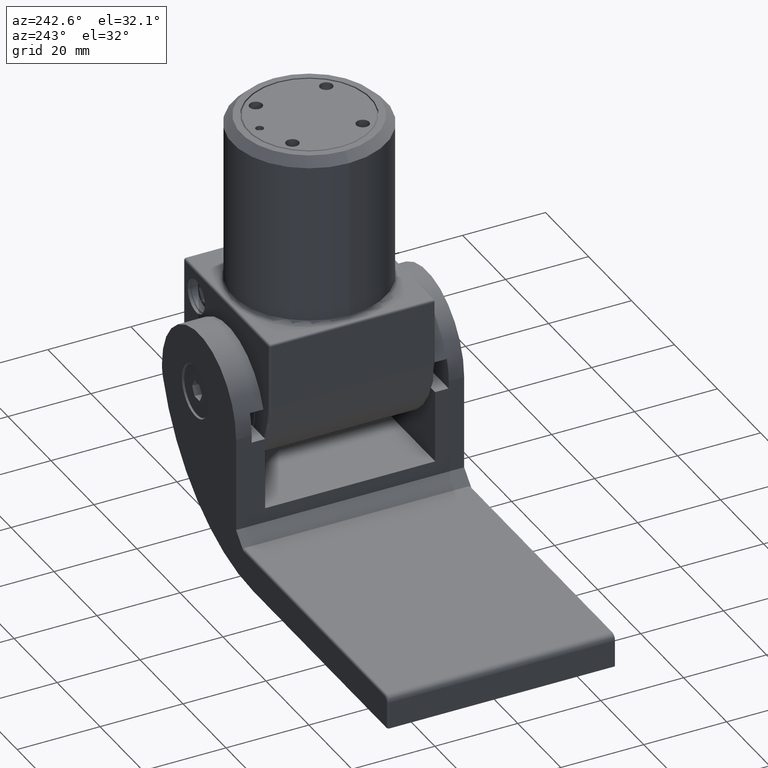
[diagram: clean part render]
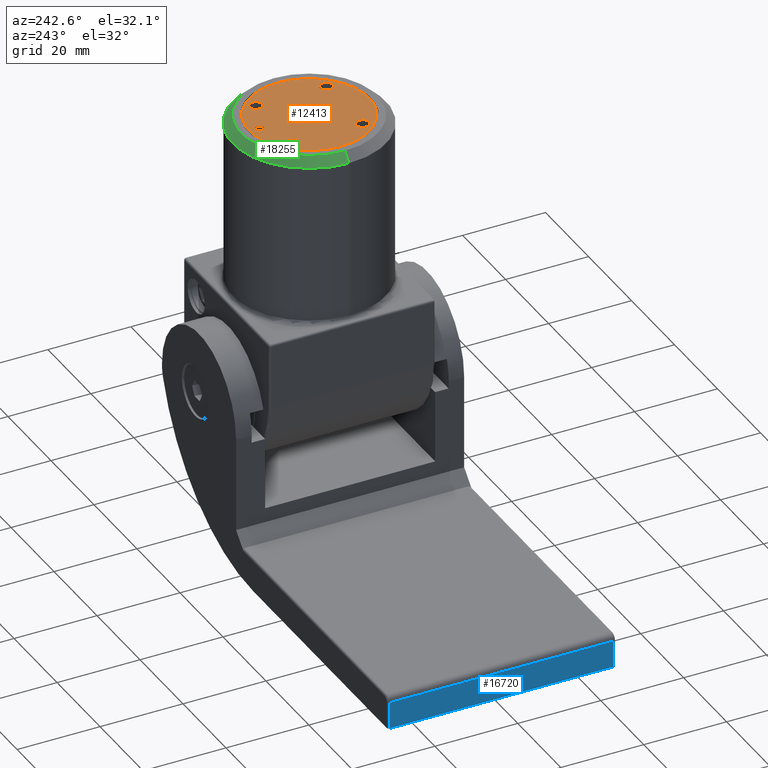
[diagram: same view with three faces highlighted in distinct colors, each labeled with its STEP entity id]
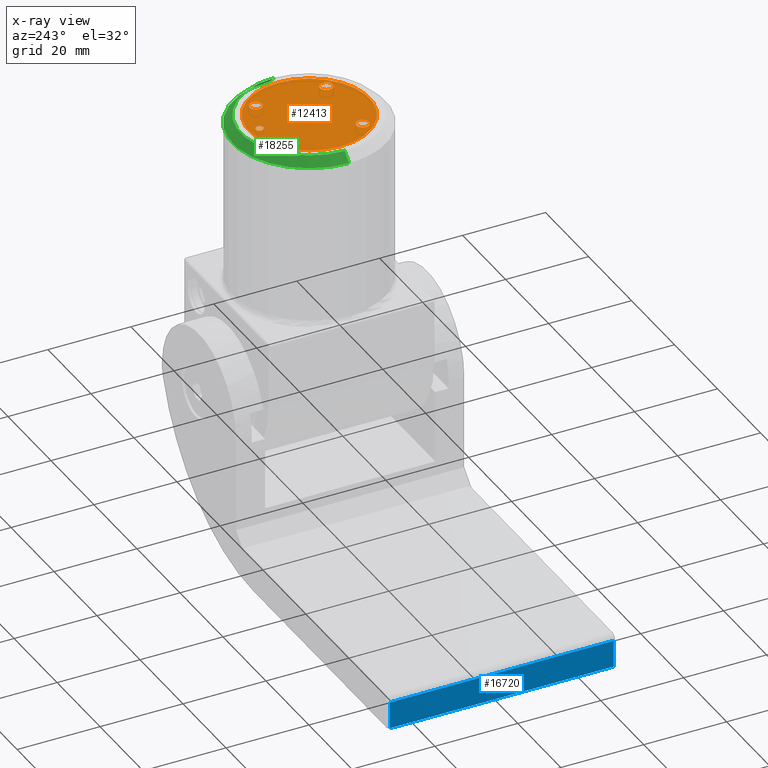
[diagram: x-ray of the same camera — body ghosted, the three highlighted faces saturated]
A machine part, auxiliary view with three faces highlighted in distinct colors.
The next image is the same camera in x-ray (body ghosted, the three faces saturated) — at least one of them is partly hidden behind the body in this view.
Their STEP definitions:

[orange] entity #12413 — the highlighted planar face has unit normal (0, 0, 1).
#201 = DIRECTION ( 'NONE',  ( 0.000000000000000000, 0.000000000000000000, 1.000000000000000000 ) ) ;
#288 = FACE_BOUND ( 'NONE', #7735, .T. ) ;
#440 = DIRECTION ( 'NONE',  ( 1.000000000000000000, 0.000000000000000000, 0.000000000000000000 ) ) ;
#494 = CARTESIAN_POINT ( 'NONE',  ( -8.485281374238585528, 8.485281374238553553, 41.50000000000000000 ) ) ;
#815 = EDGE_CURVE ( 'NONE', #1364, #20619, #9028, .T. ) ;
#955 = CARTESIAN_POINT ( 'NONE',  ( 8.485281374238583751, 8.485281374238555330, 41.50000000000000000 ) ) ;
#1011 = VERTEX_POINT ( 'NONE', #15068 ) ;
#1364 = VERTEX_POINT ( 'NONE', #10288 ) ;
#1389 = ORIENTED_EDGE ( 'NONE', *, *, #1604, .F. ) ;
#1438 = ORIENTED_EDGE ( 'NONE', *, *, #12373, .F. ) ;
#1504 = AXIS2_PLACEMENT_3D ( 'NONE', #9795, #201, #12822 ) ;
#1600 = DIRECTION ( 'NONE',  ( -1.000000000000000000, 0.000000000000000000, 0.000000000000000000 ) ) ;
#1604 = EDGE_CURVE ( 'NONE', #14098, #3227, #19007, .T. ) ;
#1706 = VERTEX_POINT ( 'NONE', #19671 ) ;
#2207 = ORIENTED_EDGE ( 'NONE', *, *, #5300, .F. ) ;
#2539 = CARTESIAN_POINT ( 'NONE',  ( -0.9499999999999890754, 12.00000000000000000, 41.50000000000000000 ) ) ;
#2703 = DIRECTION ( 'NONE',  ( 0.000000000000000000, 0.000000000000000000, 1.000000000000000000 ) ) ;
#2789 = CARTESIAN_POINT ( 'NONE',  ( -8.485281374238642371, -8.485281374238496710, 41.50000000000000000 ) ) ;
#2958 = DIRECTION ( 'NONE',  ( 0.000000000000000000, 0.000000000000000000, 1.000000000000000000 ) ) ;
#3024 = DIRECTION ( 'NONE',  ( 1.000000000000000000, 0.000000000000000000, 0.000000000000000000 ) ) ;
#3227 = VERTEX_POINT ( 'NONE', #2539 ) ;
#3291 = DIRECTION ( 'NONE',  ( 0.000000000000000000, 0.000000000000000000, 1.000000000000000000 ) ) ;
#3309 = EDGE_CURVE ( 'NONE', #13976, #19962, #6997, .T. ) ;
#3316 = EDGE_LOOP ( 'NONE', ( #5757, #3759 ) ) ;
#3759 = ORIENTED_EDGE ( 'NONE', *, *, #6625, .F. ) ;
#4109 = AXIS2_PLACEMENT_3D ( 'NONE', #17029, #20381, #10812 ) ;
#4189 = ORIENTED_EDGE ( 'NONE', *, *, #815, .F. ) ;
#4471 = DIRECTION ( 'NONE',  ( 1.007258792502661639E-14, 1.000000000000000000, 0.000000000000000000 ) ) ;
#4622 = CIRCLE ( 'NONE', #18789, 1.550000000000000933 ) ;
#4970 = CARTESIAN_POINT ( 'NONE',  ( 8.485281374238585528, -8.485281374238553553, 41.50000000000000000 ) ) ;
#4976 = DIRECTION ( 'NONE',  ( 1.000000000000000000, 0.000000000000000000, 0.000000000000000000 ) ) ;
#5183 = EDGE_CURVE ( 'NONE', #1706, #9881, #17926, .T. ) ;
#5300 = EDGE_CURVE ( 'NONE', #3227, #14098, #11949, .T. ) ;
#5524 = EDGE_CURVE ( 'NONE', #9881, #1706, #4622, .T. ) ;
#5757 = ORIENTED_EDGE ( 'NONE', *, *, #9424, .F. ) ;
#5808 = ORIENTED_EDGE ( 'NONE', *, *, #14499, .T. ) ;
#5907 = ORIENTED_EDGE ( 'NONE', *, *, #3309, .T. ) ;
#6069 = CIRCLE ( 'NONE', #12069, 1.550000000000000933 ) ;
#6410 = DIRECTION ( 'NONE',  ( 1.000000000000000000, 0.000000000000000000, 0.000000000000000000 ) ) ;
#6539 = ORIENTED_EDGE ( 'NONE', *, *, #17216, .F. ) ;
#6625 = EDGE_CURVE ( 'NONE', #16498, #10129, #12901, .T. ) ;
#6904 = CARTESIAN_POINT ( 'NONE',  ( -10.03528137423858624, 8.485281374238553553, 41.50000000000000000 ) ) ;
#6997 = CIRCLE ( 'NONE', #9971, 14.49999999999999822 ) ;
#7604 = AXIS2_PLACEMENT_3D ( 'NONE', #9738, #20799, #1600 ) ;
#7735 = EDGE_LOOP ( 'NONE', ( #1389, #2207 ) ) ;
#7908 = DIRECTION ( 'NONE',  ( 0.000000000000000000, 0.000000000000000000, 1.000000000000000000 ) ) ;
#7914 = CARTESIAN_POINT ( 'NONE',  ( 0.000000000000000000, 12.00000000000000000, 41.50000000000000000 ) ) ;
#8375 = CARTESIAN_POINT ( 'NONE',  ( 0.9499999999999890754, 12.00000000000000000, 41.50000000000000000 ) ) ;
#9023 = DIRECTION ( 'NONE',  ( 1.007258792502661639E-14, 1.000000000000000000, 0.000000000000000000 ) ) ;
#9028 = CIRCLE ( 'NONE', #11979, 1.550000000000000933 ) ;
#9177 = DIRECTION ( 'NONE',  ( 0.000000000000000000, 0.000000000000000000, 1.000000000000000000 ) ) ;
#9305 = CARTESIAN_POINT ( 'NONE',  ( -8.485281374238642371, -8.485281374238496710, 41.50000000000000000 ) ) ;
#9424 = EDGE_CURVE ( 'NONE', #10129, #16498, #9799, .T. ) ;
#9439 = DIRECTION ( 'NONE',  ( -1.000000000000000000, 0.000000000000000000, 0.000000000000000000 ) ) ;
#9708 = CARTESIAN_POINT ( 'NONE',  ( -8.485281374238585528, 8.485281374238553553, 41.50000000000000000 ) ) ;
#9738 = CARTESIAN_POINT ( 'NONE',  ( 8.485281374238585528, -8.485281374238553553, 41.50000000000000000 ) ) ;
#9795 = CARTESIAN_POINT ( 'NONE',  ( 8.485281374238583751, 8.485281374238555330, 41.50000000000000000 ) ) ;
#9799 = CIRCLE ( 'NONE', #7604, 1.550000000000000933 ) ;
#9812 = FACE_OUTER_BOUND ( 'NONE', #15809, .T. ) ;
#9881 = VERTEX_POINT ( 'NONE', #18027 ) ;
#9968 = AXIS2_PLACEMENT_3D ( 'NONE', #494, #18121, #11790 ) ;
#9971 = AXIS2_PLACEMENT_3D ( 'NONE', #19187, #3291, #6410 ) ;
#10129 = VERTEX_POINT ( 'NONE', #19347 ) ;
#10288 = CARTESIAN_POINT ( 'NONE',  ( -6.935281374238583929, 8.485281374238553553, 41.50000000000000000 ) ) ;
#10577 = FACE_BOUND ( 'NONE', #19284, .T. ) ;
#10812 = DIRECTION ( 'NONE',  ( 1.000000000000000000, 0.000000000000000000, -0.000000000000000000 ) ) ;
#10852 = EDGE_LOOP ( 'NONE', ( #4189, #6539 ) ) ;
#11172 = CIRCLE ( 'NONE', #9968, 1.550000000000000933 ) ;
#11619 = AXIS2_PLACEMENT_3D ( 'NONE', #7914, #17694, #4976 ) ;
#11790 = DIRECTION ( 'NONE',  ( 1.000000000000000000, 0.000000000000000000, 0.000000000000000000 ) ) ;
#11909 = CARTESIAN_POINT ( 'NONE',  ( -14.49999999999999822, 0.000000000000000000, 41.50000000000000000 ) ) ;
#11949 = CIRCLE ( 'NONE', #11619, 0.9499999999999890754 ) ;
#11979 = AXIS2_PLACEMENT_3D ( 'NONE', #9708, #2958, #3024 ) ;
#12069 = AXIS2_PLACEMENT_3D ( 'NONE', #2789, #9177, #4471 ) ;
#12373 = EDGE_CURVE ( 'NONE', #17489, #1011, #6069, .T. ) ;
#12413 = ADVANCED_FACE ( 'NONE', ( #9812, #288, #10577, #18548, #13366, #14354 ), #14053, .T. ) ;
#12822 = DIRECTION ( 'NONE',  ( -3.357529308342205333E-15, -1.000000000000000000, 0.000000000000000000 ) ) ;
#12901 = CIRCLE ( 'NONE', #12959, 1.550000000000000933 ) ;
#12959 = AXIS2_PLACEMENT_3D ( 'NONE', #4970, #7908, #9439 ) ;
#13366 = FACE_BOUND ( 'NONE', #20218, .T. ) ;
#13857 = AXIS2_PLACEMENT_3D ( 'NONE', #17351, #14112, #17481 ) ;
#13976 = VERTEX_POINT ( 'NONE', #14777 ) ;
#14020 = DIRECTION ( 'NONE',  ( 0.000000000000000000, 0.000000000000000000, 1.000000000000000000 ) ) ;
#14053 = PLANE ( 'NONE',  #4109 ) ;
#14098 = VERTEX_POINT ( 'NONE', #8375 ) ;
#14112 = DIRECTION ( 'NONE',  ( -0.000000000000000000, -0.000000000000000000, 1.000000000000000000 ) ) ;
#14354 = FACE_BOUND ( 'NONE', #10852, .T. ) ;
#14499 = EDGE_CURVE ( 'NONE', #19962, #13976, #18015, .T. ) ;
#14584 = EDGE_CURVE ( 'NONE', #1011, #17489, #16552, .T. ) ;
#14777 = CARTESIAN_POINT ( 'NONE',  ( 14.49999999999999822, 1.791045943753003908E-15, 41.50000000000000000 ) ) ;
#15068 = CARTESIAN_POINT ( 'NONE',  ( -6.935281374238641661, -8.485281374238496710, 41.50000000000000000 ) ) ;
#15124 = ORIENTED_EDGE ( 'NONE', *, *, #5524, .F. ) ;
#15409 = DIRECTION ( 'NONE',  ( -3.357529308342205333E-15, -1.000000000000000000, 0.000000000000000000 ) ) ;
#15809 = EDGE_LOOP ( 'NONE', ( #5808, #5907 ) ) ;
#16467 = CARTESIAN_POINT ( 'NONE',  ( -10.03528137423864308, -8.485281374238496710, 41.50000000000000000 ) ) ;
#16498 = VERTEX_POINT ( 'NONE', #19405 ) ;
#16552 = CIRCLE ( 'NONE', #19982, 1.550000000000000933 ) ;
#16761 = ORIENTED_EDGE ( 'NONE', *, *, #5183, .F. ) ;
#17029 = CARTESIAN_POINT ( 'NONE',  ( 0.000000000000000000, 0.000000000000000000, 41.50000000000000000 ) ) ;
#17216 = EDGE_CURVE ( 'NONE', #20619, #1364, #11172, .T. ) ;
#17351 = CARTESIAN_POINT ( 'NONE',  ( 0.000000000000000000, 12.00000000000000000, 41.50000000000000000 ) ) ;
#17481 = DIRECTION ( 'NONE',  ( 1.000000000000000000, 0.000000000000000000, 0.000000000000000000 ) ) ;
#17489 = VERTEX_POINT ( 'NONE', #16467 ) ;
#17694 = DIRECTION ( 'NONE',  ( -0.000000000000000000, -0.000000000000000000, 1.000000000000000000 ) ) ;
#17923 = DIRECTION ( 'NONE',  ( 0.000000000000000000, 0.000000000000000000, 1.000000000000000000 ) ) ;
#17926 = CIRCLE ( 'NONE', #1504, 1.550000000000000933 ) ;
#18015 = CIRCLE ( 'NONE', #18873, 14.49999999999999822 ) ;
#18027 = CARTESIAN_POINT ( 'NONE',  ( 6.935281374238582153, 8.485281374238555330, 41.50000000000000000 ) ) ;
#18121 = DIRECTION ( 'NONE',  ( 0.000000000000000000, 0.000000000000000000, 1.000000000000000000 ) ) ;
#18435 = ORIENTED_EDGE ( 'NONE', *, *, #14584, .F. ) ;
#18548 = FACE_BOUND ( 'NONE', #3316, .T. ) ;
#18789 = AXIS2_PLACEMENT_3D ( 'NONE', #955, #14020, #15409 ) ;
#18873 = AXIS2_PLACEMENT_3D ( 'NONE', #19619, #17923, #440 ) ;
#19007 = CIRCLE ( 'NONE', #13857, 0.9499999999999890754 ) ;
#19187 = CARTESIAN_POINT ( 'NONE',  ( 0.000000000000000000, 0.000000000000000000, 41.50000000000000000 ) ) ;
#19284 = EDGE_LOOP ( 'NONE', ( #16761, #15124 ) ) ;
#19347 = CARTESIAN_POINT ( 'NONE',  ( 10.03528137423858624, -8.485281374238553553, 41.50000000000000000 ) ) ;
#19405 = CARTESIAN_POINT ( 'NONE',  ( 6.935281374238583929, -8.485281374238553553, 41.50000000000000000 ) ) ;
#19619 = CARTESIAN_POINT ( 'NONE',  ( 0.000000000000000000, 0.000000000000000000, 41.50000000000000000 ) ) ;
#19671 = CARTESIAN_POINT ( 'NONE',  ( 10.03528137423858446, 8.485281374238555330, 41.50000000000000000 ) ) ;
#19962 = VERTEX_POINT ( 'NONE', #11909 ) ;
#19982 = AXIS2_PLACEMENT_3D ( 'NONE', #9305, #2703, #9023 ) ;
#20218 = EDGE_LOOP ( 'NONE', ( #18435, #1438 ) ) ;
#20381 = DIRECTION ( 'NONE',  ( 0.000000000000000000, 0.000000000000000000, 1.000000000000000000 ) ) ;
#20619 = VERTEX_POINT ( 'NONE', #6904 ) ;
#20799 = DIRECTION ( 'NONE',  ( 0.000000000000000000, 0.000000000000000000, 1.000000000000000000 ) ) ;

[blue] entity #16720 — the highlighted planar face has unit normal (1, 0, 0).
#781 = VERTEX_POINT ( 'NONE', #19063 ) ;
#956 = VERTEX_POINT ( 'NONE', #3672 ) ;
#1055 = DIRECTION ( 'NONE',  ( -8.673617379884036458E-16, 0.000000000000000000, 1.000000000000000000 ) ) ;
#1906 = FACE_OUTER_BOUND ( 'NONE', #9821, .T. ) ;
#1985 = DIRECTION ( 'NONE',  ( -0.000000000000000000, -1.000000000000000000, -0.000000000000000000 ) ) ;
#2144 = AXIS2_PLACEMENT_3D ( 'NONE', #5559, #19968, #8964 ) ;
#2182 = CARTESIAN_POINT ( 'NONE',  ( -52.49999999999998579, 27.50000000000000000, -25.50000000000000000 ) ) ;
#3127 = VERTEX_POINT ( 'NONE', #10274 ) ;
#3513 = ORIENTED_EDGE ( 'NONE', *, *, #4929, .T. ) ;
#3557 = ORIENTED_EDGE ( 'NONE', *, *, #6817, .T. ) ;
#3672 = CARTESIAN_POINT ( 'NONE',  ( -52.49999999999999289, -27.00000000000000000, -19.00000000000000000 ) ) ;
#4007 = ORIENTED_EDGE ( 'NONE', *, *, #18901, .T. ) ;
#4570 = LINE ( 'NONE', #2182, #18345 ) ;
#4929 = EDGE_CURVE ( 'NONE', #956, #781, #14474, .T. ) ;
#5128 = LINE ( 'NONE', #8768, #17376 ) ;
#5559 = CARTESIAN_POINT ( 'NONE',  ( -52.49999999999998579, 27.50000000000000000, -25.50000000000000000 ) ) ;
#6817 = EDGE_CURVE ( 'NONE', #781, #12384, #14420, .T. ) ;
#8768 = CARTESIAN_POINT ( 'NONE',  ( -52.49999999999998579, -27.00000000000000000, -25.50000000000000000 ) ) ;
#8964 = DIRECTION ( 'NONE',  ( 8.673617379884036458E-16, 0.000000000000000000, -1.000000000000000000 ) ) ;
#9459 = DIRECTION ( 'NONE',  ( -0.000000000000000000, 1.000000000000000000, -0.000000000000000000 ) ) ;
#9821 = EDGE_LOOP ( 'NONE', ( #10093, #4007, #3513, #3557 ) ) ;
#10093 = ORIENTED_EDGE ( 'NONE', *, *, #10264, .T. ) ;
#10190 = VECTOR ( 'NONE', #9459, 1000.000000000000000 ) ;
#10264 = EDGE_CURVE ( 'NONE', #12384, #3127, #4570, .T. ) ;
#10274 = CARTESIAN_POINT ( 'NONE',  ( -52.49999999999998579, -27.00000000000000000, -25.50000000000000000 ) ) ;
#12384 = VERTEX_POINT ( 'NONE', #12427 ) ;
#12427 = CARTESIAN_POINT ( 'NONE',  ( -52.49999999999998579, 27.00000000000000000, -25.50000000000000000 ) ) ;
#12444 = DIRECTION ( 'NONE',  ( 8.673617379884036458E-16, -0.000000000000000000, -1.000000000000000000 ) ) ;
#14420 = LINE ( 'NONE', #20339, #17629 ) ;
#14474 = LINE ( 'NONE', #19164, #10190 ) ;
#16720 = ADVANCED_FACE ( 'NONE', ( #1906 ), #17026, .F. ) ;
#17026 = PLANE ( 'NONE',  #2144 ) ;
#17376 = VECTOR ( 'NONE', #1055, 1000.000000000000000 ) ;
#17629 = VECTOR ( 'NONE', #12444, 1000.000000000000000 ) ;
#18345 = VECTOR ( 'NONE', #1985, 1000.000000000000000 ) ;
#18901 = EDGE_CURVE ( 'NONE', #3127, #956, #5128, .T. ) ;
#19063 = CARTESIAN_POINT ( 'NONE',  ( -52.49999999999999289, 27.00000000000000000, -19.00000000000000000 ) ) ;
#19164 = CARTESIAN_POINT ( 'NONE',  ( -52.49999999999999289, 27.50000000000000000, -19.00000000000000000 ) ) ;
#19968 = DIRECTION ( 'NONE',  ( 1.000000000000000000, -0.000000000000000000, 8.673617379884036458E-16 ) ) ;
#20339 = CARTESIAN_POINT ( 'NONE',  ( -52.49999999999998579, 27.00000000000000000, -25.50000000000000000 ) ) ;

[green] entity #18255 — the highlighted conical surface has half-angle 45 deg.
#147 = DIRECTION ( 'NONE',  ( 1.000000000000000000, 0.000000000000000000, 0.000000000000000000 ) ) ;
#480 = EDGE_CURVE ( 'NONE', #15946, #19583, #989, .T. ) ;
#953 = EDGE_CURVE ( 'NONE', #2966, #13429, #6040, .T. ) ;
#989 = LINE ( 'NONE', #17505, #18502 ) ;
#2780 = EDGE_LOOP ( 'NONE', ( #14035, #5436, #17089, #15964 ) ) ;
#2966 = VERTEX_POINT ( 'NONE', #10006 ) ;
#2995 = DIRECTION ( 'NONE',  ( -0.7071067811865456854, 0.000000000000000000, -0.7071067811865493491 ) ) ;
#3190 = CARTESIAN_POINT ( 'NONE',  ( 0.000000000000000000, 0.000000000000000000, 39.49999999999996447 ) ) ;
#3335 = FACE_OUTER_BOUND ( 'NONE', #2780, .T. ) ;
#3592 = CARTESIAN_POINT ( 'NONE',  ( 0.000000000000000000, 0.000000000000000000, 41.50000000000000000 ) ) ;
#5436 = ORIENTED_EDGE ( 'NONE', *, *, #953, .T. ) ;
#6040 = LINE ( 'NONE', #14996, #11833 ) ;
#6340 = AXIS2_PLACEMENT_3D ( 'NONE', #3592, #14847, #8989 ) ;
#7219 = AXIS2_PLACEMENT_3D ( 'NONE', #3190, #17707, #147 ) ;
#7278 = EDGE_CURVE ( 'NONE', #2966, #15946, #15897, .T. ) ;
#8989 = DIRECTION ( 'NONE',  ( -1.000000000000000000, 0.000000000000000000, 0.000000000000000000 ) ) ;
#9184 = AXIS2_PLACEMENT_3D ( 'NONE', #14183, #14244, #9377 ) ;
#9265 = CARTESIAN_POINT ( 'NONE',  ( 18.50000000000000000, 2.265596578422603396E-15, 39.49999999999996447 ) ) ;
#9377 = DIRECTION ( 'NONE',  ( 1.000000000000000000, 0.000000000000000000, 0.000000000000000000 ) ) ;
#9447 = EDGE_CURVE ( 'NONE', #19583, #13429, #13351, .T. ) ;
#10006 = CARTESIAN_POINT ( 'NONE',  ( 16.49999999999997158, 2.143131898507866276E-15, 41.50000000000000000 ) ) ;
#11833 = VECTOR ( 'NONE', #16725, 1000.000000000000000 ) ;
#12163 = CONICAL_SURFACE ( 'NONE', #6340, 16.49999999999997158, 0.7853981633974457255 ) ;
#12466 = CARTESIAN_POINT ( 'NONE',  ( -16.49999999999997158, 0.000000000000000000, 41.50000000000000000 ) ) ;
#13351 = CIRCLE ( 'NONE', #7219, 18.50000000000000000 ) ;
#13429 = VERTEX_POINT ( 'NONE', #9265 ) ;
#14035 = ORIENTED_EDGE ( 'NONE', *, *, #7278, .F. ) ;
#14157 = CARTESIAN_POINT ( 'NONE',  ( -18.50000000000000000, 0.000000000000000000, 39.49999999999996447 ) ) ;
#14183 = CARTESIAN_POINT ( 'NONE',  ( 0.000000000000000000, 0.000000000000000000, 41.50000000000000000 ) ) ;
#14244 = DIRECTION ( 'NONE',  ( 0.000000000000000000, 0.000000000000000000, 1.000000000000000000 ) ) ;
#14847 = DIRECTION ( 'NONE',  ( 0.000000000000000000, 0.000000000000000000, -1.000000000000000000 ) ) ;
#14996 = CARTESIAN_POINT ( 'NONE',  ( 16.49999999999997158, 2.020667218593129550E-15, 41.50000000000000000 ) ) ;
#15897 = CIRCLE ( 'NONE', #9184, 16.49999999999997158 ) ;
#15946 = VERTEX_POINT ( 'NONE', #12466 ) ;
#15964 = ORIENTED_EDGE ( 'NONE', *, *, #480, .F. ) ;
#16725 = DIRECTION ( 'NONE',  ( 0.7071067811865456854, 8.659560562354909439E-17, -0.7071067811865493491 ) ) ;
#17089 = ORIENTED_EDGE ( 'NONE', *, *, #9447, .F. ) ;
#17505 = CARTESIAN_POINT ( 'NONE',  ( -16.49999999999997158, 0.000000000000000000, 41.50000000000000000 ) ) ;
#17707 = DIRECTION ( 'NONE',  ( 0.000000000000000000, 0.000000000000000000, -1.000000000000000000 ) ) ;
#18255 = ADVANCED_FACE ( 'NONE', ( #3335 ), #12163, .T. ) ;
#18502 = VECTOR ( 'NONE', #2995, 1000.000000000000000 ) ;
#19583 = VERTEX_POINT ( 'NONE', #14157 ) ;